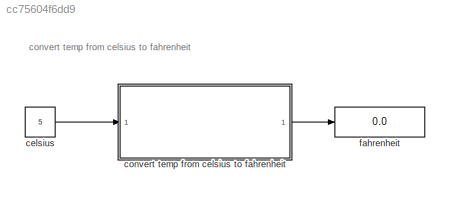
MODEL slx_cc75604f6dd9
KIND model
CONFIG AbsTol = auto
CONFIG EnableMultiTasking = off
CONFIG FixedStep = auto
CONFIG MaxStep = 1e-6
CONFIG MinStep = auto
CONFIG RelTol = 1e-3
CONFIG SampleTimeConstraint = Unconstrained
CONFIG SolverName = VariableStepAuto
CONFIG StartTime = 0.0
CONFIG StopTime = 50
BLOCK [Constant] celsius
  Value = 5
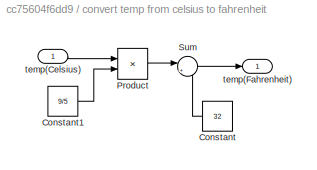
BLOCK [SubSystem] convert temp from celsius to fahrenheit
  Ports = [1, 1]
  RequestExecContextInheritance = off
BLOCK [Constant] convert temp from celsius to fahrenheit/Constant
  Value = 32
BLOCK [Constant] convert temp from celsius to fahrenheit/Constant1
  Value = 9/5
BLOCK [Product] convert temp from celsius to fahrenheit/Product
  Ports = [2, 1]
BLOCK [Sum] convert temp from celsius to fahrenheit/Sum
  Inputs = |++
  Ports = [2, 1]
BLOCK [Inport] convert temp from celsius to fahrenheit/temp(Celsius)
BLOCK [Outport] convert temp from celsius to fahrenheit/temp(Fahrenheit)
BLOCK [Display] fahrenheit
  Decimation = 1
  Ports = [1]
ANNOTATION (root): convert temp from celsius to fahrenheit
LINE celsius:1 -> convert temp from celsius to fahrenheit:1
LINE convert temp from celsius to fahrenheit/Constant1:1 -> convert temp from celsius to fahrenheit/Product:2
LINE convert temp from celsius to fahrenheit/Constant:1 -> convert temp from celsius to fahrenheit/Sum:2
LINE convert temp from celsius to fahrenheit/Product:1 -> convert temp from celsius to fahrenheit/Sum:1
LINE convert temp from celsius to fahrenheit/Sum:1 -> convert temp from celsius to fahrenheit/temp(Fahrenheit):1
LINE convert temp from celsius to fahrenheit/temp(Celsius):1 -> convert temp from celsius to fahrenheit/Product:1
LINE convert temp from celsius to fahrenheit:1 -> fahrenheit:1
